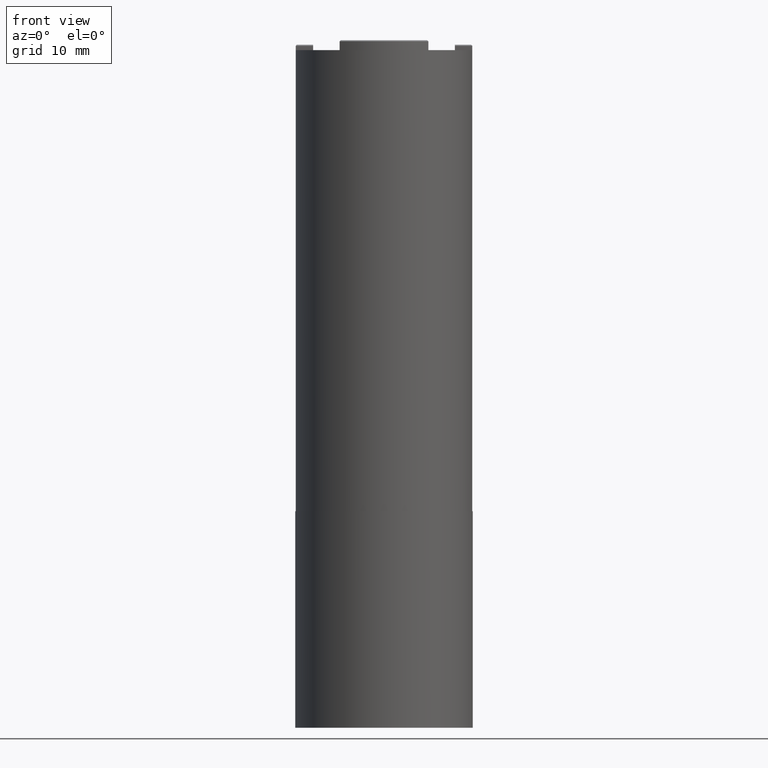
[diagram: clean part render]
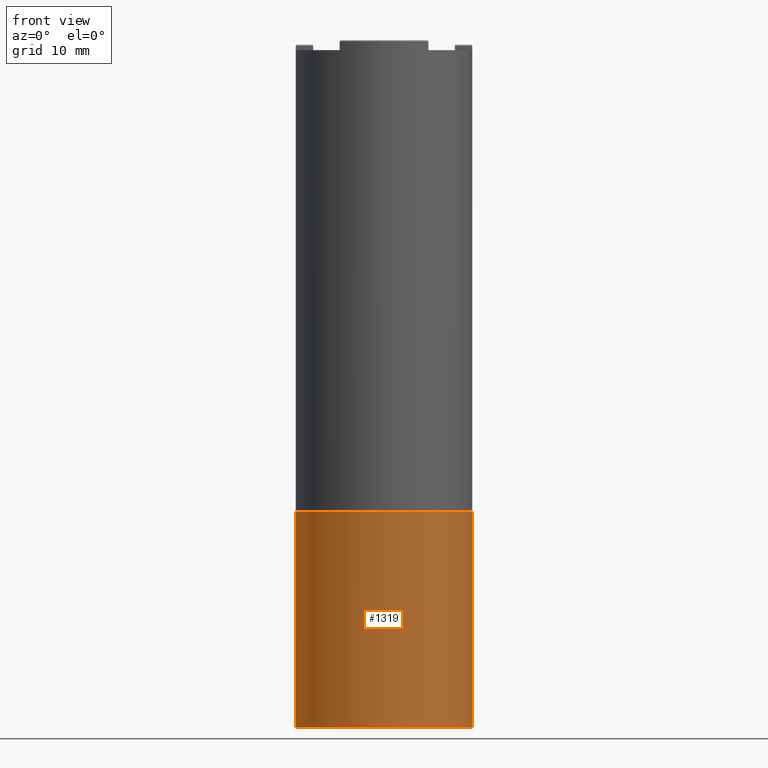
[diagram: same view with one face highlighted and labeled with its STEP entity id]
A machine part, front view. The second image highlights one B-rep face of the part: STEP entity #1319.
In plain terms, the highlighted cylindrical surface (partial cylindrical patch) has radius 12.7 mm, axis along (-0, -0, -1).
Its self-contained STEP definition (entity closure, byte-faithful):
#22 = EDGE_CURVE ( 'NONE', #509, #118, #47, .T. ) ;
#37 = ORIENTED_EDGE ( 'NONE', *, *, #1623, .F. ) ;
#43 = ORIENTED_EDGE ( 'NONE', *, *, #86, .T. ) ;
#47 = CIRCLE ( 'NONE', #526, 12.69999999999999929 ) ;
#76 = DIRECTION ( 'NONE',  ( 1.000000000000000000, 0.000000000000000000, 0.000000000000000000 ) ) ;
#84 = DIRECTION ( 'NONE',  ( -0.000000000000000000, -0.000000000000000000, -1.000000000000000000 ) ) ;
#86 = EDGE_CURVE ( 'NONE', #934, #1215, #689, .T. ) ;
#100 = EDGE_CURVE ( 'NONE', #1215, #509, #862, .T. ) ;
#118 = VERTEX_POINT ( 'NONE', #420 ) ;
#248 = CYLINDRICAL_SURFACE ( 'NONE', #1429, 12.69999999999999929 ) ;
#420 = CARTESIAN_POINT ( 'NONE',  ( 12.69999999999999929, 1.555301434917138433E-15, 0.000000000000000000 ) ) ;
#509 = VERTEX_POINT ( 'NONE', #663 ) ;
#526 = AXIS2_PLACEMENT_3D ( 'NONE', #1446, #818, #76 ) ;
#549 = VECTOR ( 'NONE', #84, 1000.000000000000000 ) ;
#556 = CARTESIAN_POINT ( 'NONE',  ( 0.000000000000000000, 0.000000000000000000, 31.00000000000000000 ) ) ;
#571 = DIRECTION ( 'NONE',  ( -0.000000000000000000, -0.000000000000000000, -1.000000000000000000 ) ) ;
#621 = CARTESIAN_POINT ( 'NONE',  ( 0.000000000000000000, 0.000000000000000000, 97.03000000000000114 ) ) ;
#663 = CARTESIAN_POINT ( 'NONE',  ( -12.69999999999999929, 0.000000000000000000, 0.000000000000000000 ) ) ;
#689 = CIRCLE ( 'NONE', #692, 12.69999999999999929 ) ;
#692 = AXIS2_PLACEMENT_3D ( 'NONE', #556, #969, #1111 ) ;
#726 = CARTESIAN_POINT ( 'NONE',  ( -12.69999999999999929, 0.000000000000000000, 97.03000000000000114 ) ) ;
#818 = DIRECTION ( 'NONE',  ( 0.000000000000000000, 0.000000000000000000, 1.000000000000000000 ) ) ;
#826 = CARTESIAN_POINT ( 'NONE',  ( 12.69999999999999929, 1.555301434917138433E-15, 97.03000000000000114 ) ) ;
#862 = LINE ( 'NONE', #726, #1805 ) ;
#895 = DIRECTION ( 'NONE',  ( -0.000000000000000000, -0.000000000000000000, -1.000000000000000000 ) ) ;
#922 = LINE ( 'NONE', #826, #549 ) ;
#934 = VERTEX_POINT ( 'NONE', #1497 ) ;
#963 = ORIENTED_EDGE ( 'NONE', *, *, #22, .T. ) ;
#969 = DIRECTION ( 'NONE',  ( -0.000000000000000000, -0.000000000000000000, -1.000000000000000000 ) ) ;
#1111 = DIRECTION ( 'NONE',  ( 1.000000000000000000, 0.000000000000000000, 0.000000000000000000 ) ) ;
#1212 = DIRECTION ( 'NONE',  ( -1.000000000000000000, 0.000000000000000000, 0.000000000000000000 ) ) ;
#1215 = VERTEX_POINT ( 'NONE', #1307 ) ;
#1307 = CARTESIAN_POINT ( 'NONE',  ( -12.69999999999999929, 0.000000000000000000, 31.00000000000000000 ) ) ;
#1319 = ADVANCED_FACE ( 'NONE', ( #1697 ), #248, .T. ) ;
#1429 = AXIS2_PLACEMENT_3D ( 'NONE', #621, #895, #1212 ) ;
#1446 = CARTESIAN_POINT ( 'NONE',  ( 0.000000000000000000, 0.000000000000000000, 0.000000000000000000 ) ) ;
#1497 = CARTESIAN_POINT ( 'NONE',  ( 12.69999999999999929, 1.555301434917138433E-15, 31.00000000000000000 ) ) ;
#1604 = EDGE_LOOP ( 'NONE', ( #37, #43, #1672, #963 ) ) ;
#1623 = EDGE_CURVE ( 'NONE', #934, #118, #922, .T. ) ;
#1672 = ORIENTED_EDGE ( 'NONE', *, *, #100, .T. ) ;
#1697 = FACE_OUTER_BOUND ( 'NONE', #1604, .T. ) ;
#1805 = VECTOR ( 'NONE', #571, 1000.000000000000000 ) ;